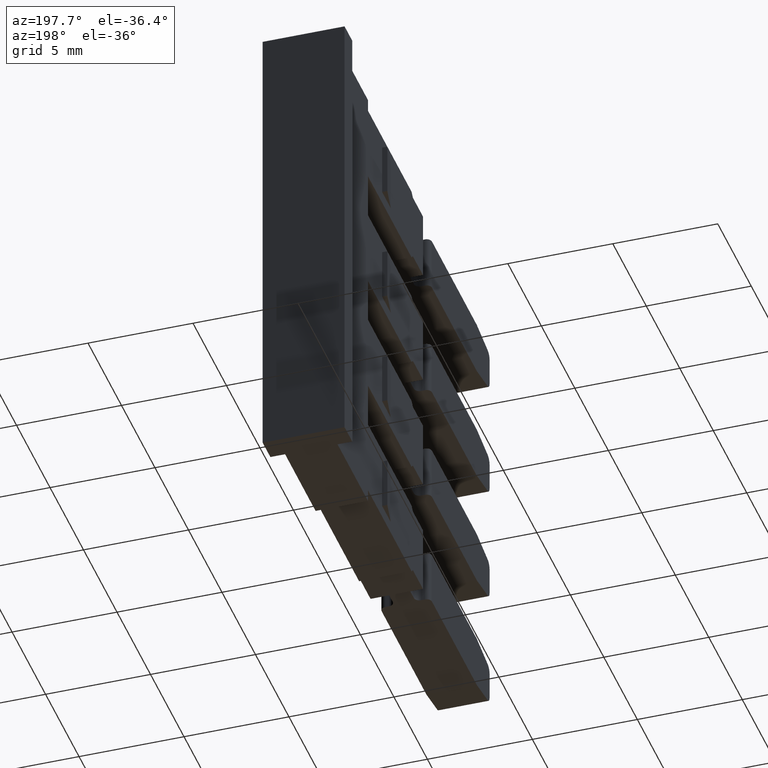
[diagram: clean part render]
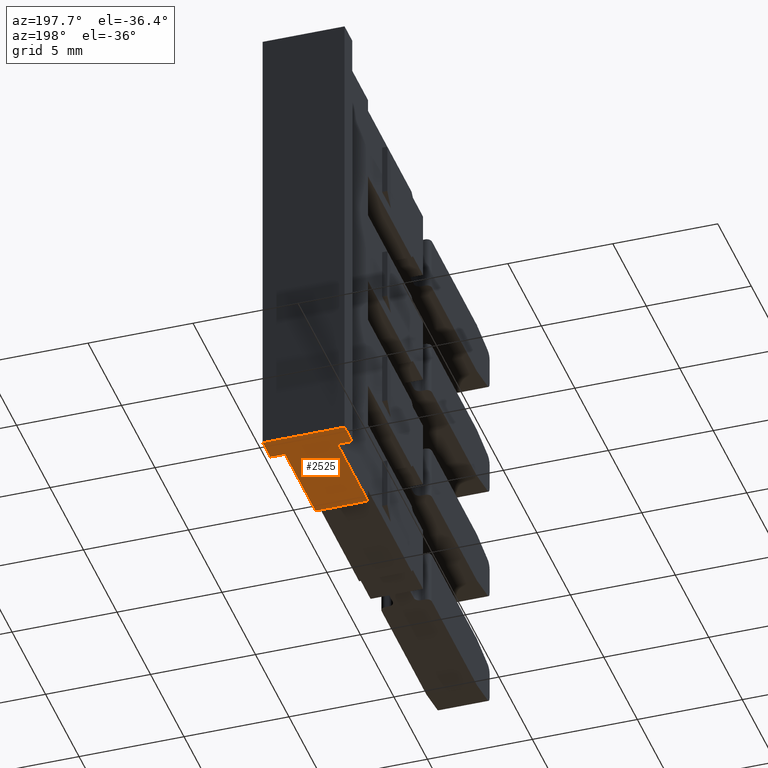
[diagram: same view with one face highlighted and labeled with its STEP entity id]
A machine part, auxiliary view. The second image highlights one B-rep face of the part: STEP entity #2525.
In plain terms, the highlighted planar face has unit normal (-0, -0, -1).
Its self-contained STEP definition (entity closure, byte-faithful):
#309 = EDGE_LOOP ( 'NONE', ( #1075, #1089, #1090, #1108, #1120, #1058, #1146, #1059 ) ) ;
#606 = CARTESIAN_POINT ( 'NONE',  ( 1456.068071211366000, 1009.692679537506000, -99.64999999998745700 ) ) ;
#611 = CARTESIAN_POINT ( 'NONE',  ( 1457.871626077922200, 1008.542679537498100, -99.64999999998734400 ) ) ;
#613 = CARTESIAN_POINT ( 'NONE',  ( 1459.968071211366100, 1009.692679537506000, -99.64999999998735800 ) ) ;
#615 = DIRECTION ( 'NONE',  ( 6.401193638283110000E-015, 1.000000000000000000, 0.0000000000000000000 ) ) ;
#621 = DIRECTION ( 'NONE',  ( -6.401193638283130500E-015, -1.000000000000000000, 0.0000000000000000000 ) ) ;
#623 = DIRECTION ( 'NONE',  ( -1.000000000000000000, 1.591874026890570400E-028, 1.715124499443520100E-015 ) ) ;
#637 = LINE ( 'NONE', #611, #1752 ) ;
#638 = LINE ( 'NONE', #613, #1739 ) ;
#650 = LINE ( 'NONE', #606, #1733 ) ;
#677 = LINE ( 'NONE', #695, #1738 ) ;
#690 = DIRECTION ( 'NONE',  ( 1.000000000000000000, -1.591874026890570400E-028, -1.715124499443520100E-015 ) ) ;
#695 = CARTESIAN_POINT ( 'NONE',  ( 1457.871626077922200, 1009.692679537498100, -99.64999999998745700 ) ) ;
#758 = LINE ( 'NONE', #787, #1728 ) ;
#787 = CARTESIAN_POINT ( 'NONE',  ( 1459.267071211366600, 1007.642679537504000, -99.64999999998741500 ) ) ;
#800 = DIRECTION ( 'NONE',  ( -1.280238727656624100E-014, -1.000000000000000000, 0.0000000000000000000 ) ) ;
#834 = CARTESIAN_POINT ( 'NONE',  ( 1456.167660365589900, 1008.542679537504100, -99.64999999998730100 ) ) ;
#870 = LINE ( 'NONE', #834, #1836 ) ;
#886 = CARTESIAN_POINT ( 'NONE',  ( 1456.769071211365800, 1004.894679537500000, -99.64999999998701700 ) ) ;
#890 = DIRECTION ( 'NONE',  ( -1.000000000000000000, -0.0000000000000000000, 0.0000000000000000000 ) ) ;
#901 = LINE ( 'NONE', #886, #1788 ) ;
#905 = DIRECTION ( 'NONE',  ( 0.0000000000000000000, 1.000000000000000000, -9.281390519504917400E-014 ) ) ;
#1058 = ORIENTED_EDGE ( 'NONE', *, *, #2056, .T. ) ;
#1059 = ORIENTED_EDGE ( 'NONE', *, *, #1990, .T. ) ;
#1075 = ORIENTED_EDGE ( 'NONE', *, *, #1973, .F. ) ;
#1089 = ORIENTED_EDGE ( 'NONE', *, *, #1972, .T. ) ;
#1090 = ORIENTED_EDGE ( 'NONE', *, *, #2028, .T. ) ;
#1108 = ORIENTED_EDGE ( 'NONE', *, *, #2218, .T. ) ;
#1120 = ORIENTED_EDGE ( 'NONE', *, *, #2071, .T. ) ;
#1146 = ORIENTED_EDGE ( 'NONE', *, *, #1974, .F. ) ;
#1245 = VECTOR ( 'NONE', #4134, 1000.000000000000000 ) ;
#1565 = AXIS2_PLACEMENT_3D ( 'NONE', #3097, #3080, #3126 ) ;
#1728 = VECTOR ( 'NONE', #800, 1000.000000000000000 ) ;
#1733 = VECTOR ( 'NONE', #621, 1000.000000000000000 ) ;
#1738 = VECTOR ( 'NONE', #690, 1000.000000000000000 ) ;
#1739 = VECTOR ( 'NONE', #615, 1000.000000000000000 ) ;
#1752 = VECTOR ( 'NONE', #623, 1000.000000000000000 ) ;
#1788 = VECTOR ( 'NONE', #905, 1000.000000000000000 ) ;
#1836 = VECTOR ( 'NONE', #890, 1000.000000000000000 ) ;
#1972 = EDGE_CURVE ( 'NONE', #5322, #5273, #637, .T. ) ;
#1973 = EDGE_CURVE ( 'NONE', #5322, #5259, #638, .T. ) ;
#1974 = EDGE_CURVE ( 'NONE', #5250, #5320, #650, .T. ) ;
#1990 = EDGE_CURVE ( 'NONE', #5250, #5259, #677, .T. ) ;
#2028 = EDGE_CURVE ( 'NONE', #5273, #5339, #758, .T. ) ;
#2056 = EDGE_CURVE ( 'NONE', #5303, #5320, #870, .T. ) ;
#2071 = EDGE_CURVE ( 'NONE', #5377, #5303, #901, .T. ) ;
#2218 = EDGE_CURVE ( 'NONE', #5339, #5377, #4124, .T. ) ;
#2525 = ADVANCED_FACE ( 'NONE', ( #3123 ), #3125, .T. ) ;
#3080 = DIRECTION ( 'NONE',  ( -1.715124499443520100E-015, -9.281390519504917400E-014, -1.000000000000000000 ) ) ;
#3097 = CARTESIAN_POINT ( 'NONE',  ( 1457.871626077922200, 1004.894679537500000, -99.64999999998701700 ) ) ;
#3123 = FACE_OUTER_BOUND ( 'NONE', #309, .T. ) ;
#3125 = PLANE ( 'NONE',  #1565 ) ;
#3126 = DIRECTION ( 'NONE',  ( 0.0000000000000000000, 1.000000000000000000, -9.281390519504917400E-014 ) ) ;
#3408 = CARTESIAN_POINT ( 'NONE',  ( 1459.968071211366100, 1009.692679537500100, -99.64999999998741500 ) ) ;
#3411 = CARTESIAN_POINT ( 'NONE',  ( 1459.267071211366600, 1008.542679537501800, -99.64999999998737200 ) ) ;
#3448 = CARTESIAN_POINT ( 'NONE',  ( 1456.068071211366000, 1009.692679537500100, -99.64999999998745700 ) ) ;
#3473 = CARTESIAN_POINT ( 'NONE',  ( 1459.968071211366100, 1008.542679537499700, -99.64999999998735800 ) ) ;
#3503 = CARTESIAN_POINT ( 'NONE',  ( 1456.769071211365800, 1008.542679537502500, -99.64999999998723000 ) ) ;
#3516 = CARTESIAN_POINT ( 'NONE',  ( 1459.267071211366600, 1003.994679537496500, -99.64999999998713100 ) ) ;
#3522 = CARTESIAN_POINT ( 'NONE',  ( 1456.068071211366000, 1008.542679537502500, -99.64999999998735800 ) ) ;
#3547 = CARTESIAN_POINT ( 'NONE',  ( 1456.769071211365800, 1003.994679537498800, -99.64999999998703100 ) ) ;
#4098 = CARTESIAN_POINT ( 'NONE',  ( 1457.871626077922200, 1003.994679537496500, -99.64999999998693200 ) ) ;
#4124 = LINE ( 'NONE', #4098, #1245 ) ;
#4134 = DIRECTION ( 'NONE',  ( -1.000000000000000000, 1.591874026890570400E-028, 1.715124499443520100E-015 ) ) ;
#5250 = VERTEX_POINT ( 'NONE', #3448 ) ;
#5259 = VERTEX_POINT ( 'NONE', #3408 ) ;
#5273 = VERTEX_POINT ( 'NONE', #3411 ) ;
#5303 = VERTEX_POINT ( 'NONE', #3503 ) ;
#5320 = VERTEX_POINT ( 'NONE', #3522 ) ;
#5322 = VERTEX_POINT ( 'NONE', #3473 ) ;
#5339 = VERTEX_POINT ( 'NONE', #3516 ) ;
#5377 = VERTEX_POINT ( 'NONE', #3547 ) ;